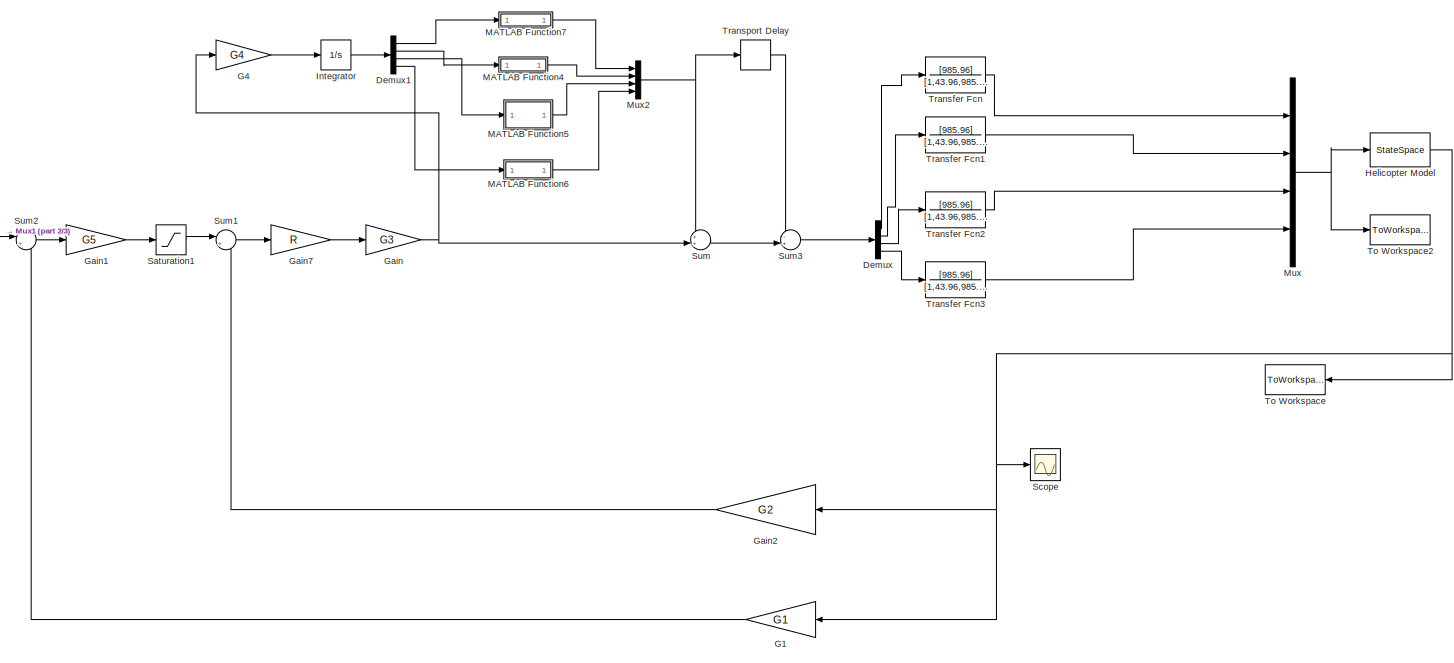
[diagram: root canvas - part 1/3, full width, middle band]
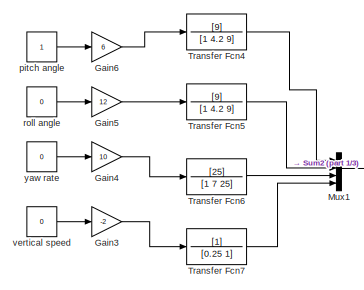
[diagram: root canvas - part 2/3, top left region]
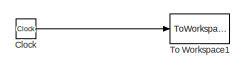
[diagram: root canvas - part 3/3, bottom right region]
MODEL slx_317f41cead6c
KIND model
CONFIG AbsTol = auto
CONFIG FixedStep = auto
CONFIG MaxStep = auto
CONFIG MinStep = auto
CONFIG RelTol = 1e-3
CONFIG SampleTimeConstraint = Unconstrained
CONFIG Solver = VariableStepAuto
CONFIG SolverMode = Auto
CONFIG SolverName = VariableStepAuto
CONFIG StartTime = 0.0
CONFIG StopTime = 10
BLOCK [Clock] Clock
BLOCK [Demux] Demux
  DisplayOption = bar
  Ports = [1, 4]
BLOCK [Demux] Demux1
  DisplayOption = bar
  Ports = [1, 4]
BLOCK [Gain] G1
  Gain = G1
  Multiplication = Matrix(K*u)
  OutDataTypeStr = Inherit: Inherit via internal rule
  ParamDataTypeStr = Inherit: Inherit via internal rule
  SaturateOnIntegerOverflow = off
BLOCK [Gain] G4
  Gain = G4
  Multiplication = Matrix(K*u)
  OutDataTypeStr = Inherit: Inherit via internal rule
  ParamDataTypeStr = Inherit: Inherit via internal rule
  SaturateOnIntegerOverflow = off
BLOCK [Gain] Gain
  Gain = G3
  Multiplication = Matrix(K*u)
  OutDataTypeStr = Inherit: Inherit via internal rule
  ParamDataTypeStr = Inherit: Inherit via internal rule
  SaturateOnIntegerOverflow = off
BLOCK [Gain] Gain1
  Gain = G5
  Multiplication = Matrix(K*u)
  OutDataTypeStr = Inherit: Inherit via internal rule
  ParamDataTypeStr = Inherit: Inherit via internal rule
  SaturateOnIntegerOverflow = off
BLOCK [Gain] Gain2
  Gain = G2
  Multiplication = Matrix(K*u)
  OutDataTypeStr = Inherit: Inherit via internal rule
  ParamDataTypeStr = Inherit: Inherit via internal rule
  SaturateOnIntegerOverflow = off
BLOCK [Gain] Gain3
  Gain = -2
  OutDataTypeStr = Inherit: Inherit via internal rule
  ParamDataTypeStr = Inherit: Inherit via internal rule
  SaturateOnIntegerOverflow = off
BLOCK [Gain] Gain4
  Gain = 10
  OutDataTypeStr = Inherit: Inherit via internal rule
  ParamDataTypeStr = Inherit: Inherit via internal rule
  SaturateOnIntegerOverflow = off
BLOCK [Gain] Gain5
  Gain = 12
  OutDataTypeStr = Inherit: Inherit via internal rule
  ParamDataTypeStr = Inherit: Inherit via internal rule
  SaturateOnIntegerOverflow = off
BLOCK [Gain] Gain6
  Gain = 6
  OutDataTypeStr = Inherit: Inherit via internal rule
  ParamDataTypeStr = Inherit: Inherit via internal rule
  SaturateOnIntegerOverflow = off
BLOCK [Gain] Gain7
  Gain = R
  Multiplication = Matrix(K*u)
  OutDataTypeStr = Inherit: Inherit via internal rule
  ParamDataTypeStr = Inherit: Inherit via internal rule
  SaturateOnIntegerOverflow = off
BLOCK [StateSpace] Helicopter Model 
  A = A
  B = B
  C = C
  D = D
  Ports = [1, 1]
  X0 = 0
BLOCK [Integrator] Integrator
  Ports = [1, 1]
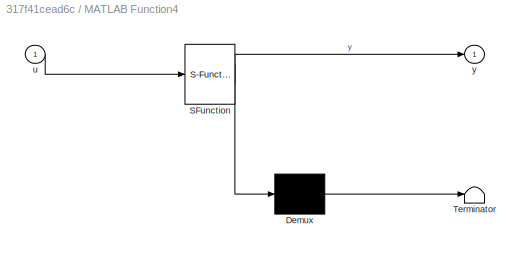
BLOCK [SubSystem] MATLAB Function4
  ErrorFcn = Stateflow.Translate.translate
  PermitHierarchicalResolution = ExplicitOnly
  Ports = [1, 1]
  RequestExecContextInheritance = off
  SFBlockType = MATLAB Function
  TreatAsAtomicUnit = on
  Variant = off
BLOCK [Demux] MATLAB Function4/ Demux 
  Outputs = 1
  Ports = [1, 1]
BLOCK [S-Function] MATLAB Function4/ SFunction 
  EnableBusSupport = on
  FunctionName = sf_sfun
  PortCounts = [1 2]
  Ports = [1, 2]
  SFunctionDeploymentMode = off
  Tag = Stateflow S-Function MFCS 5
BLOCK [Terminator] MATLAB Function4/ Terminator 
BLOCK [Inport] MATLAB Function4/u
  IconDisplay = Port number
BLOCK [Outport] MATLAB Function4/y
  IconDisplay = Port number
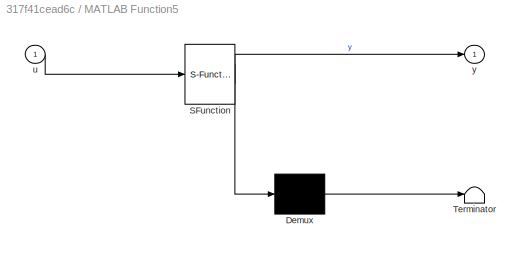
BLOCK [SubSystem] MATLAB Function5
  ErrorFcn = Stateflow.Translate.translate
  PermitHierarchicalResolution = ExplicitOnly
  Ports = [1, 1]
  RequestExecContextInheritance = off
  SFBlockType = MATLAB Function
  TreatAsAtomicUnit = on
  Variant = off
BLOCK [Demux] MATLAB Function5/ Demux 
  Outputs = 1
  Ports = [1, 1]
BLOCK [S-Function] MATLAB Function5/ SFunction 
  EnableBusSupport = on
  FunctionName = sf_sfun
  PortCounts = [1 2]
  Ports = [1, 2]
  SFunctionDeploymentMode = off
  Tag = Stateflow S-Function MFCS 6
BLOCK [Terminator] MATLAB Function5/ Terminator 
BLOCK [Inport] MATLAB Function5/u
  IconDisplay = Port number
BLOCK [Outport] MATLAB Function5/y
  IconDisplay = Port number
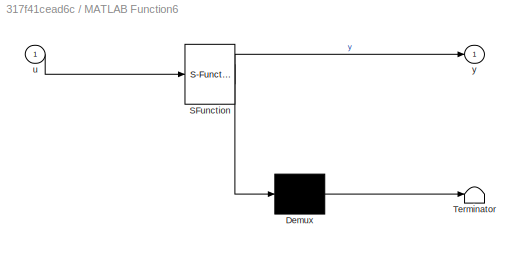
BLOCK [SubSystem] MATLAB Function6
  ErrorFcn = Stateflow.Translate.translate
  PermitHierarchicalResolution = ExplicitOnly
  Ports = [1, 1]
  RequestExecContextInheritance = off
  SFBlockType = MATLAB Function
  TreatAsAtomicUnit = on
  Variant = off
BLOCK [Demux] MATLAB Function6/ Demux 
  Outputs = 1
  Ports = [1, 1]
BLOCK [S-Function] MATLAB Function6/ SFunction 
  EnableBusSupport = on
  FunctionName = sf_sfun
  PortCounts = [1 2]
  Ports = [1, 2]
  SFunctionDeploymentMode = off
  Tag = Stateflow S-Function MFCS 7
BLOCK [Terminator] MATLAB Function6/ Terminator 
BLOCK [Inport] MATLAB Function6/u
  IconDisplay = Port number
BLOCK [Outport] MATLAB Function6/y
  IconDisplay = Port number
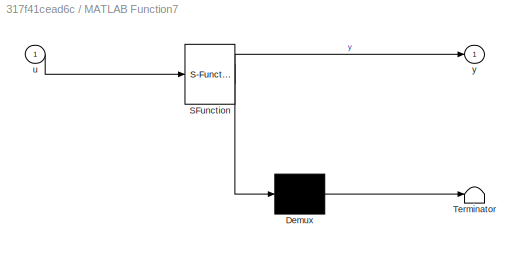
BLOCK [SubSystem] MATLAB Function7
  ErrorFcn = Stateflow.Translate.translate
  PermitHierarchicalResolution = ExplicitOnly
  Ports = [1, 1]
  RequestExecContextInheritance = off
  SFBlockType = MATLAB Function
  TreatAsAtomicUnit = on
  Variant = off
BLOCK [Demux] MATLAB Function7/ Demux 
  Outputs = 1
  Ports = [1, 1]
BLOCK [S-Function] MATLAB Function7/ SFunction 
  EnableBusSupport = on
  FunctionName = sf_sfun
  PortCounts = [1 2]
  Ports = [1, 2]
  SFunctionDeploymentMode = off
  Tag = Stateflow S-Function MFCS 8
BLOCK [Terminator] MATLAB Function7/ Terminator 
BLOCK [Inport] MATLAB Function7/u
  IconDisplay = Port number
BLOCK [Outport] MATLAB Function7/y
  IconDisplay = Port number
BLOCK [Mux] Mux
  DisplayOption = bar
  Ports = [4, 1]
BLOCK [Mux] Mux1
  DisplayOption = bar
  Ports = [4, 1]
BLOCK [Mux] Mux2
  DisplayOption = bar
  Ports = [4, 1]
BLOCK [Saturate] Saturation1
  InputPortMap = u0
  LowerLimit = -1
  Ports = [1, 1]
  UpperLimit = 1
BLOCK [Scope] Scope
  Ports = [1]
  ScopeSpecificationString = Simulink.scopes.TimeScopeBlockCfg('CurrentConfiguration', extmgr.ConfigurationSet(extmgr.Configuration('Core','General UI',true),extmgr.Configuration('Core','Source UI',true),extmgr.Configuration('Sources','WiredSimulink',true),extmgr.Configuration('Visuals','Time Domain',true,'SerializedDisplays',{struct('MinYLimReal','-81.11928','MaxYLimReal','35.37823','YLabelReal','','MinYLimMag','0.00000','Ma...<+1575ch>
BLOCK [Sum] Sum
  IconShape = round
  InputSameDT = off
  Inputs = ++|
  OutDataTypeStr = Inherit: Inherit via internal rule
  Ports = [2, 1]
  SaturateOnIntegerOverflow = off
BLOCK [Sum] Sum1
  IconShape = round
  InputSameDT = off
  Inputs = |+-
  OutDataTypeStr = Inherit: Inherit via internal rule
  Ports = [2, 1]
  SaturateOnIntegerOverflow = off
BLOCK [Sum] Sum2
  IconShape = round
  InputSameDT = off
  Inputs = |+-
  OutDataTypeStr = Inherit: Inherit via internal rule
  Ports = [2, 1]
  SaturateOnIntegerOverflow = off
BLOCK [Sum] Sum3
  IconShape = round
  InputSameDT = off
  Inputs = -+|
  OutDataTypeStr = Inherit: Inherit via internal rule
  Ports = [2, 1]
  SaturateOnIntegerOverflow = off
BLOCK [ToWorkspace] To Workspace
  FixptAsFi = on
  MaxDataPoints = inf
  Ports = [1]
  SampleTime = -1
  Save2DSignal = 3-D array (concatenate along third dimension)
  VariableName = y
BLOCK [ToWorkspace] To Workspace1
  FixptAsFi = on
  MaxDataPoints = inf
  Ports = [1]
  SampleTime = -1
  Save2DSignal = 3-D array (concatenate along third dimension)
  VariableName = t
BLOCK [ToWorkspace] To Workspace2
  FixptAsFi = on
  MaxDataPoints = inf
  Ports = [1]
  SampleTime = -1
  Save2DSignal = 3-D array (concatenate along third dimension)
  VariableName = control_input
BLOCK [TransferFcn] Transfer Fcn
  Denominator = [1,43.96,985.96]
  Numerator = [985.96]
BLOCK [TransferFcn] Transfer Fcn1
  Denominator = [1,43.96,985.96]
  Numerator = [985.96]
BLOCK [TransferFcn] Transfer Fcn2
  Denominator = [1,43.96,985.96]
  Numerator = [985.96]
BLOCK [TransferFcn] Transfer Fcn3
  Denominator = [1,43.96,985.96]
  Numerator = [985.96]
BLOCK [TransferFcn] Transfer Fcn4
  Denominator = [1 4.2 9]
  Numerator = [9]
BLOCK [TransferFcn] Transfer Fcn5
  Denominator = [1 4.2 9]
  Numerator = [9]
BLOCK [TransferFcn] Transfer Fcn6
  Denominator = [1 7 25]
  Numerator = [25]
BLOCK [TransferFcn] Transfer Fcn7
  Denominator = [0.25 1]
BLOCK [TransportDelay] Transport Delay
  DelayTime = 0.1
  Ports = [1, 1]
BLOCK [Constant] pitch angle 
BLOCK [Constant] roll angle
  Value = 0
BLOCK [Constant] vertical speed
  Value = 0
BLOCK [Constant] yaw rate
  Value = 0
LINE Clock:1 -> To Workspace1:1
LINE Demux1:1 -> MATLAB Function7:1
LINE Demux1:2 -> MATLAB Function4:1
LINE Demux1:3 -> MATLAB Function5:1
LINE Demux1:4 -> MATLAB Function6:1
LINE Demux:1 -> Transfer Fcn:1
LINE Demux:2 -> Transfer Fcn1:1
LINE Demux:3 -> Transfer Fcn2:1
LINE Demux:4 -> Transfer Fcn3:1
LINE G1:1 -> Sum2:2
LINE G4:1 -> Integrator:1
LINE Gain1:1 -> Saturation1:1
LINE Gain2:1 -> Sum1:2
LINE Gain3:1 -> Transfer Fcn7:1
LINE Gain4:1 -> Transfer Fcn6:1
LINE Gain5:1 -> Transfer Fcn5:1
LINE Gain6:1 -> Transfer Fcn4:1
LINE Gain7:1 -> Gain:1
NET Gain:1 -> G4:1, Sum:2
NET Helicopter Model :1 -> G1:1, Gain2:1, Scope:1, To Workspace:1
LINE Integrator:1 -> Demux1:1
LINE MATLAB Function4:1 -> Mux2:2
LINE MATLAB Function5:1 -> Mux2:3
LINE MATLAB Function6:1 -> Mux2:4
LINE MATLAB Function7:1 -> Mux2:1
LINE Mux1:1 -> Sum2:1
NET Mux2:1 -> Sum:1, Transport Delay:1
NET Mux:1 -> Helicopter Model :1, To Workspace2:1
LINE Saturation1:1 -> Sum1:1
LINE Sum1:1 -> Gain7:1
LINE Sum2:1 -> Gain1:1
LINE Sum3:1 -> Demux:1
LINE Sum:1 -> Sum3:2
LINE Transfer Fcn1:1 -> Mux:2
LINE Transfer Fcn2:1 -> Mux:3
LINE Transfer Fcn3:1 -> Mux:4
LINE Transfer Fcn4:1 -> Mux1:1
LINE Transfer Fcn5:1 -> Mux1:2
LINE Transfer Fcn6:1 -> Mux1:3
LINE Transfer Fcn7:1 -> Mux1:4
LINE Transfer Fcn:1 -> Mux:1
LINE Transport Delay:1 -> Sum3:1
LINE pitch angle :1 -> Gain6:1
LINE roll angle:1 -> Gain5:1
LINE vertical speed:1 -> Gain3:1
LINE yaw rate:1 -> Gain4:1
note: NET lines group one-source signal fan-out (src -> all destinations, sorted); 1:1 wires keep LINE
CHART MATLAB Function4 states=1 transitions=1
  STATE_LABEL 'eML_blk_kernel()'
  STATE_LABEL 'SCRIPT:\nfunction y = fcn(u)\n%#codegen\n\nif abs(u)>1\n    y=0;\nelse\n    y=u;\nend'
CHART MATLAB Function5 states=1 transitions=1
  STATE_LABEL 'eML_blk_kernel()'
  STATE_LABEL 'SCRIPT:\nfunction y = fcn(u)\n%#codegen\n\nif abs(u)>1\n    y=0;\nelse\n    y=u;\nend'
CHART MATLAB Function6 states=1 transitions=1
  STATE_LABEL 'eML_blk_kernel()'
  STATE_LABEL 'SCRIPT:\nfunction y = fcn(u)\n%#codegen\n\nif abs(u)>1\n    y=0;\nelse\n    y=u;\nend'
CHART MATLAB Function7 states=1 transitions=1
  STATE_LABEL 'eML_blk_kernel()'
  STATE_LABEL 'SCRIPT:\nfunction y = fcn(u)\n%#codegen\n\nif abs(u)>1\n    y=0;\nelse\n    y=u;\nend'
